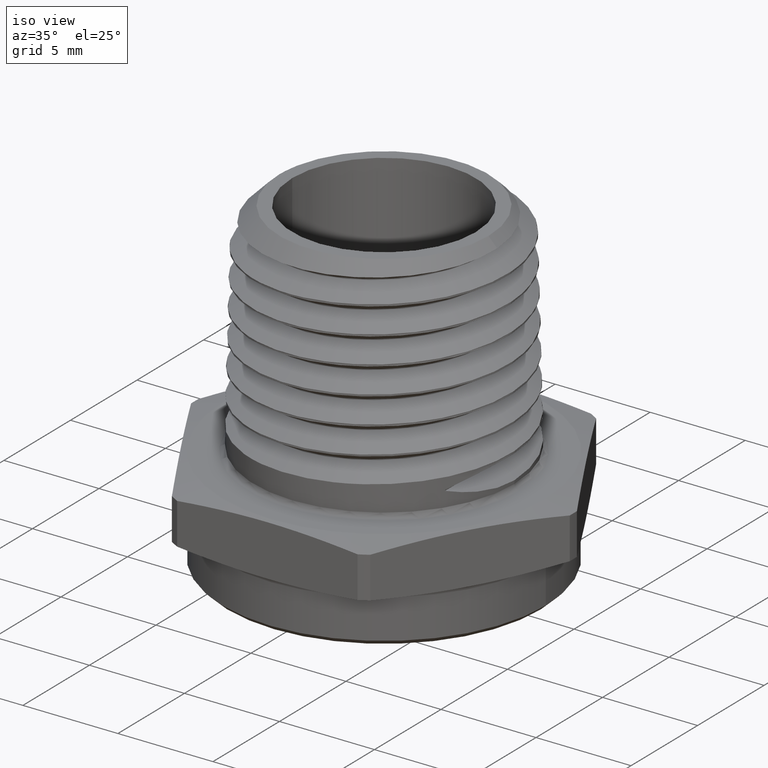
[diagram: clean part render]
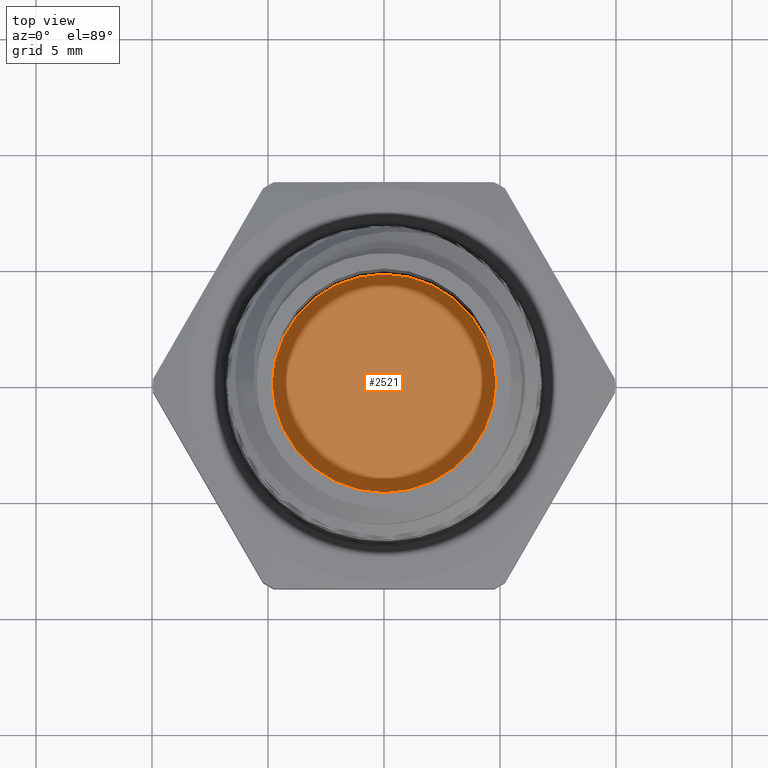
[diagram: tour spotlight — one face highlighted and labeled with its STEP entity id]
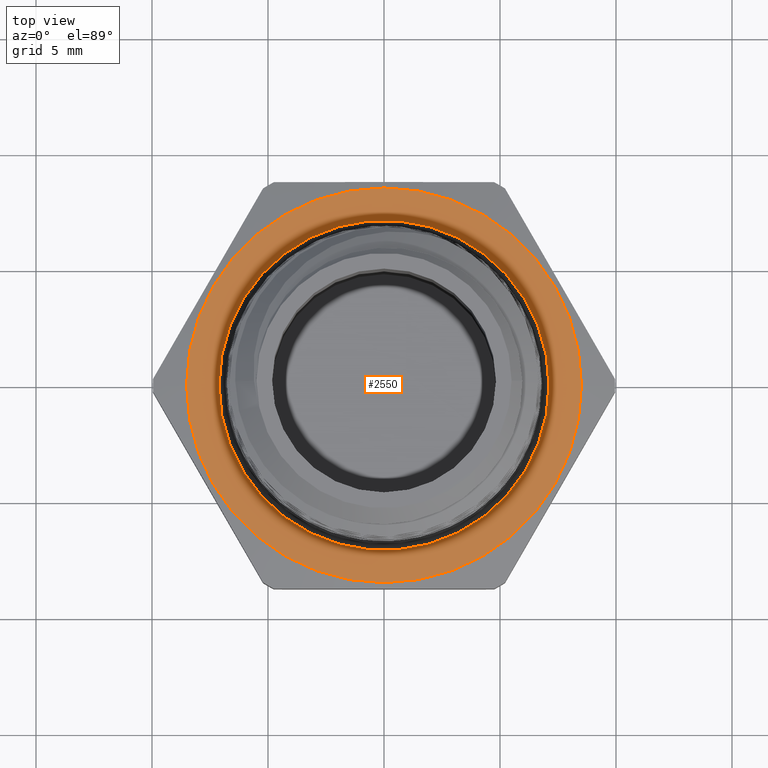
[diagram: tour spotlight — one face highlighted and labeled with its STEP entity id]
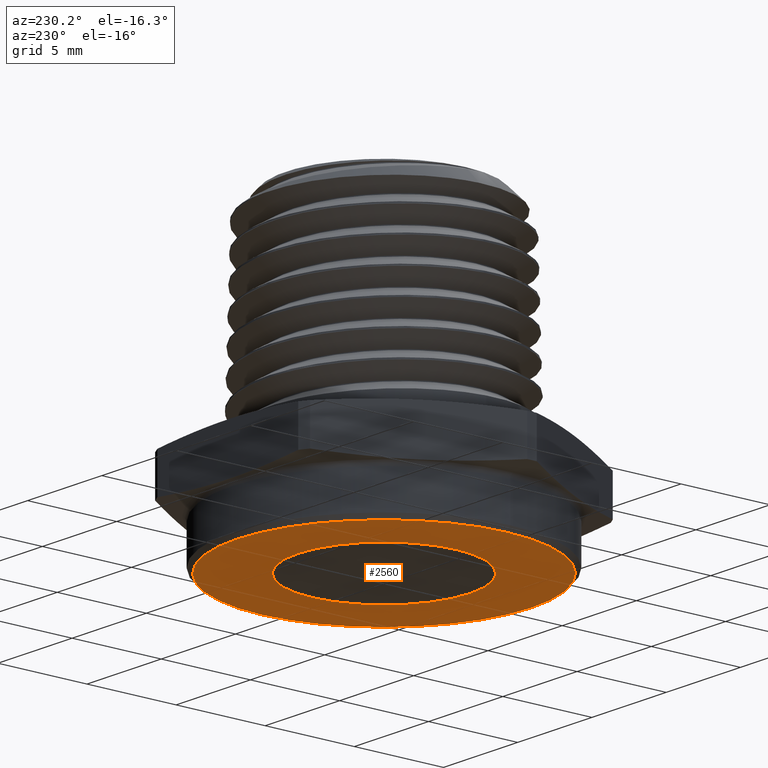
[diagram: tour spotlight — one face highlighted and labeled with its STEP entity id]
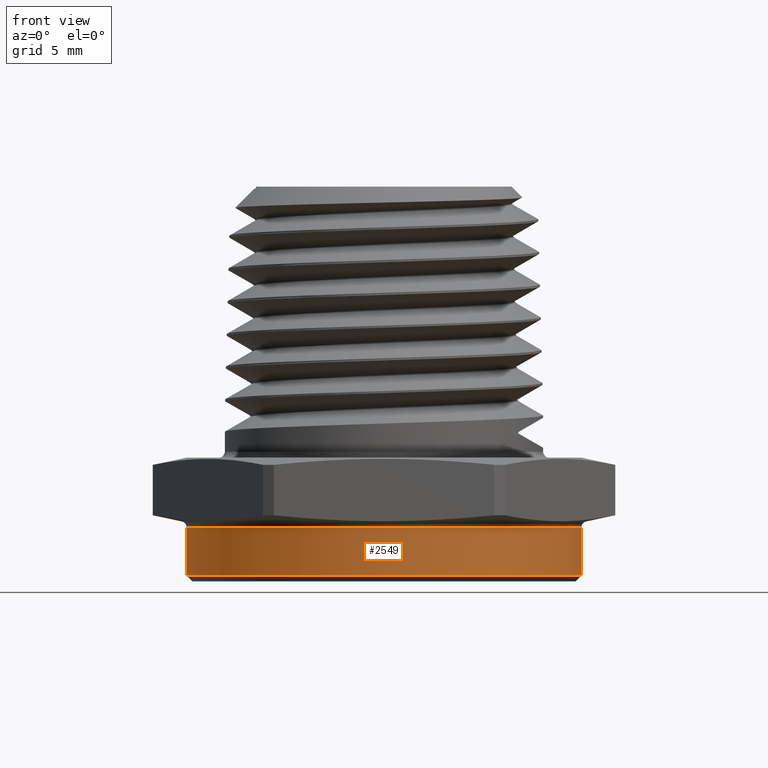
[diagram: tour spotlight — one face highlighted and labeled with its STEP entity id]
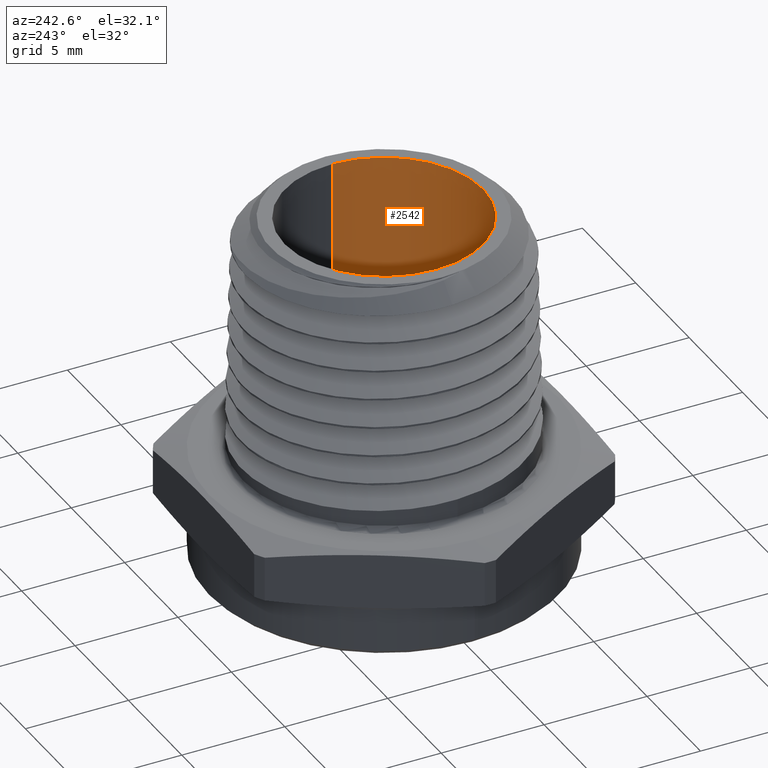
[diagram: tour spotlight — one face highlighted and labeled with its STEP entity id]
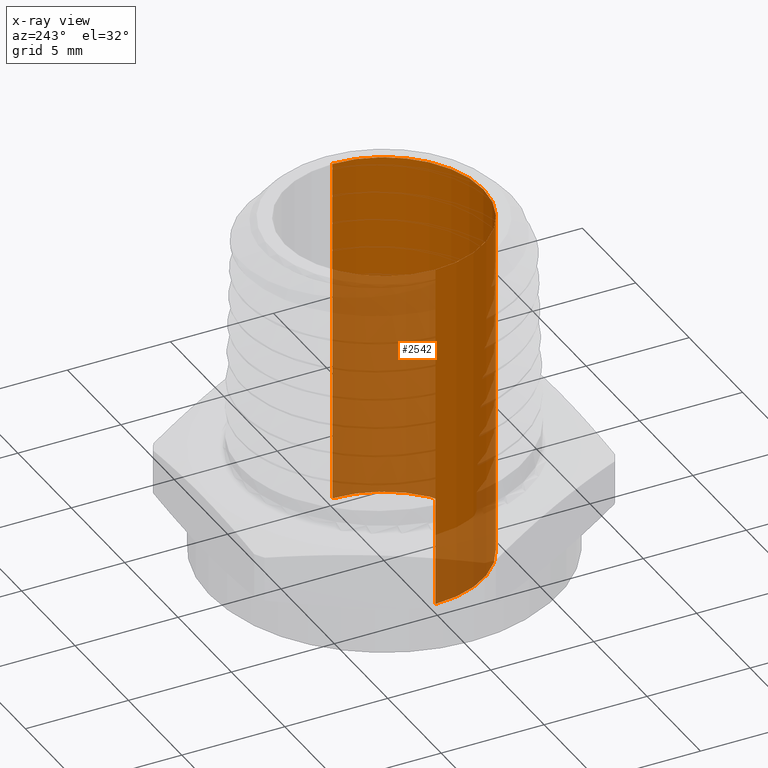
[diagram: x-ray of the same camera — body ghosted, this tour face saturated]
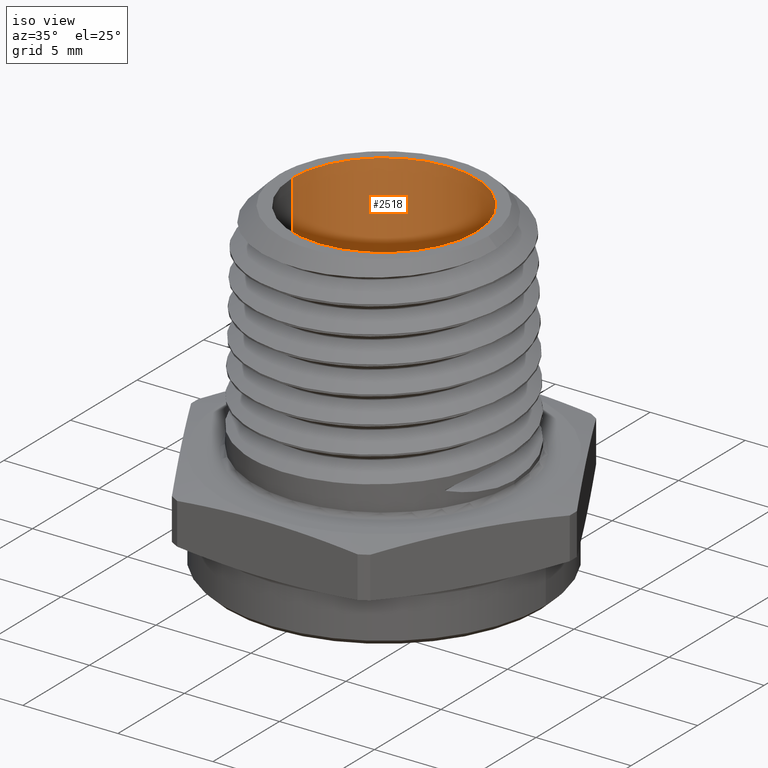
[diagram: tour spotlight — one face highlighted and labeled with its STEP entity id]
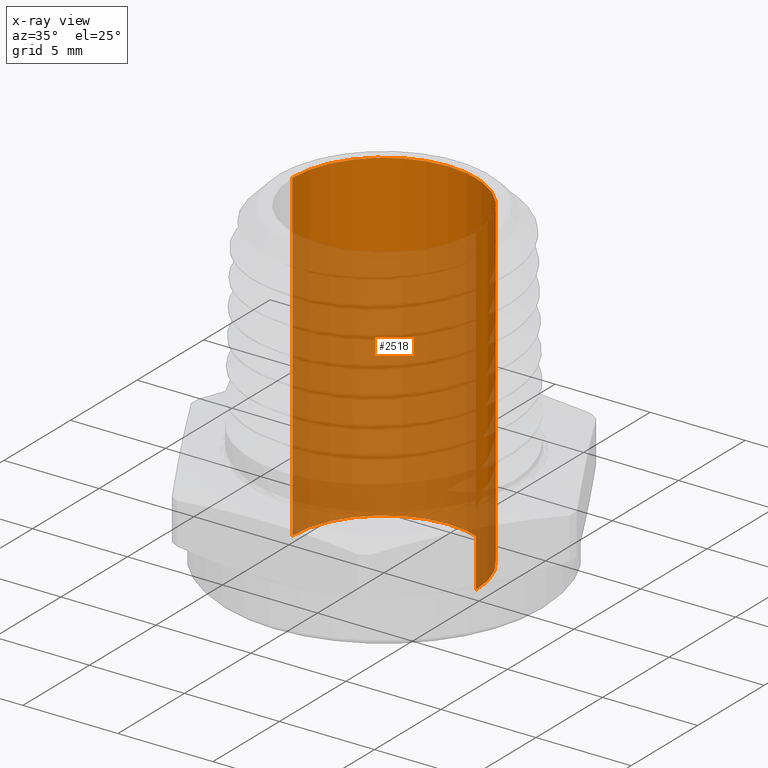
[diagram: x-ray of the same camera — body ghosted, this tour face saturated]
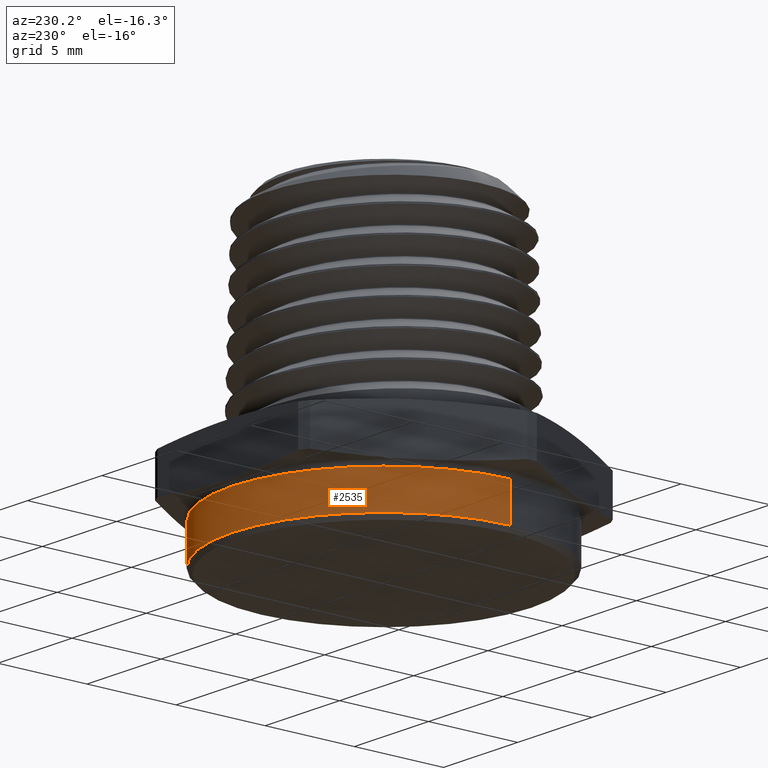
[diagram: tour spotlight — one face highlighted and labeled with its STEP entity id]
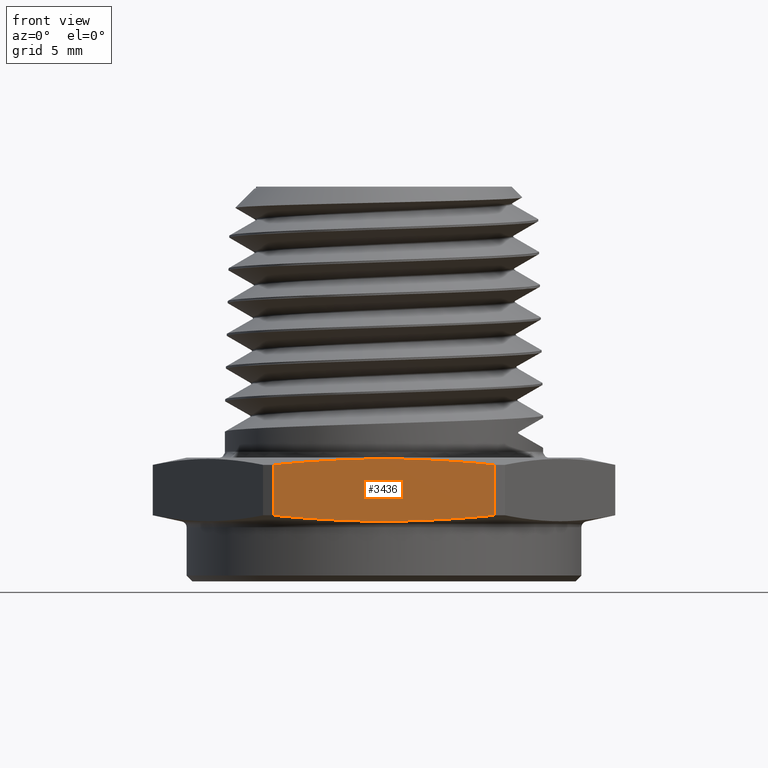
[diagram: tour spotlight — one face highlighted and labeled with its STEP entity id]
A machine part: a face-by-face anatomy tour. The part has 59 B-rep faces; the first image is the clean iso view, then the 8 largest visible faces are spotlighted one at a time (largest first), each with its STEP entity span.

Face 1 — top view, entity #2521. In plain terms, the highlighted planar face has unit normal (0, 0, -1).
Definition (entity closure, byte-faithful):
#861 = PLANE ( 'NONE',  #1283 ) ;
#870 = CARTESIAN_POINT ( 'NONE',  ( -3.414809992080328400E-017, 0.0000000000000000000, 0.02999999999999998800 ) ) ;
#871 = DIRECTION ( 'NONE',  ( 0.0000000000000000000, 0.0000000000000000000, -1.000000000000000000 ) ) ;
#872 = DIRECTION ( 'NONE',  ( -1.000000000000000000, 0.0000000000000000000, -0.0000000000000000000 ) ) ;
#1204 = EDGE_CURVE ( 'NONE', #1735, #1736, #2582, .T. ) ;
#1207 = EDGE_CURVE ( 'NONE', #1736, #1735, #2587, .T. ) ;
#1226 = AXIS2_PLACEMENT_3D ( 'NONE', #3749, #3750, #3751 ) ;
#1228 = AXIS2_PLACEMENT_3D ( 'NONE', #3756, #3757, #3758 ) ;
#1283 = AXIS2_PLACEMENT_3D ( 'NONE', #870, #871, #872 ) ;
#1354 = FACE_OUTER_BOUND ( 'NONE', #1505, .T. ) ;
#1505 = EDGE_LOOP ( 'NONE', ( #1563, #1528 ) ) ;
#1528 = ORIENTED_EDGE ( 'NONE', *, *, #1207, .F. ) ;
#1563 = ORIENTED_EDGE ( 'NONE', *, *, #1204, .F. ) ;
#1735 = VERTEX_POINT ( 'NONE', #2308 ) ;
#1736 = VERTEX_POINT ( 'NONE', #2292 ) ;
#2292 = CARTESIAN_POINT ( 'NONE',  ( 0.1899999999999999500, 2.326828918379970600E-017, 0.02999999999999998800 ) ) ;
#2308 = CARTESIAN_POINT ( 'NONE',  ( -0.1900000000000000300, 0.0000000000000000000, 0.02999999999999998800 ) ) ;
#2521 = ADVANCED_FACE ( 'NONE', ( #1354 ), #861, .F. ) ;
#2582 = CIRCLE ( 'NONE', #1226, 0.1899999999999999700 ) ;
#2587 = CIRCLE ( 'NONE', #1228, 0.1899999999999999700 ) ;
#3749 = CARTESIAN_POINT ( 'NONE',  ( -3.414809992080328400E-017, 0.0000000000000000000, 0.02999999999999998800 ) ) ;
#3750 = DIRECTION ( 'NONE',  ( 0.0000000000000000000, 0.0000000000000000000, -1.000000000000000000 ) ) ;
#3751 = DIRECTION ( 'NONE',  ( -1.000000000000000000, 0.0000000000000000000, 0.0000000000000000000 ) ) ;
#3756 = CARTESIAN_POINT ( 'NONE',  ( -3.414809992080328400E-017, 0.0000000000000000000, 0.02999999999999998800 ) ) ;
#3757 = DIRECTION ( 'NONE',  ( 0.0000000000000000000, 0.0000000000000000000, -1.000000000000000000 ) ) ;
#3758 = DIRECTION ( 'NONE',  ( -1.000000000000000000, 0.0000000000000000000, 0.0000000000000000000 ) ) ;

Face 2 — top view, entity #2550. In plain terms, the highlighted planar face has unit normal (-0, 0, 1).
Definition (entity closure, byte-faithful):
#964 = DIRECTION ( 'NONE',  ( -0.0000000000000000000, 0.0000000000000000000, 1.000000000000000000 ) ) ;
#965 = CARTESIAN_POINT ( 'NONE',  ( -0.1991858428704206800, -0.3449999999999998100, 0.1100000000000000000 ) ) ;
#967 = PLANE ( 'NONE',  #1316 ) ;
#969 = DIRECTION ( 'NONE',  ( 1.000000000000000000, 0.0000000000000000000, 0.0000000000000000000 ) ) ;
#1083 = CARTESIAN_POINT ( 'NONE',  ( 0.2800000000000000300, 0.0000000000000000000, 0.1100000000000000300 ) ) ;
#1117 = CARTESIAN_POINT ( 'NONE',  ( 0.3350000000000000200, 4.102566777143634000E-017, 0.1099999999999999300 ) ) ;
#1118 = CARTESIAN_POINT ( 'NONE',  ( -0.3350000000000000200, 0.0000000000000000000, 0.1100000000000000000 ) ) ;
#1122 = CARTESIAN_POINT ( 'NONE',  ( -0.2800000000000000300, 3.429011037612588800E-017, 0.1100000000000000300 ) ) ;
#1167 = EDGE_CURVE ( 'NONE', #5028, #5022, #2726, .T. ) ;
#1168 = EDGE_CURVE ( 'NONE', #5027, #4989, #2725, .T. ) ;
#1214 = AXIS2_PLACEMENT_3D ( 'NONE', #4363, #4364, #4365 ) ;
#1215 = AXIS2_PLACEMENT_3D ( 'NONE', #4366, #4367, #4368 ) ;
#1236 = AXIS2_PLACEMENT_3D ( 'NONE', #3790, #3791, #3792 ) ;
#1247 = AXIS2_PLACEMENT_3D ( 'NONE', #3847, #3848, #3849 ) ;
#1316 = AXIS2_PLACEMENT_3D ( 'NONE', #965, #964, #969 ) ;
#1450 = ORIENTED_EDGE ( 'NONE', *, *, #1594, .F. ) ;
#1451 = ORIENTED_EDGE ( 'NONE', *, *, #1167, .F. ) ;
#1452 = ORIENTED_EDGE ( 'NONE', *, *, #1578, .T. ) ;
#1453 = ORIENTED_EDGE ( 'NONE', *, *, #1168, .T. ) ;
#1578 = EDGE_CURVE ( 'NONE', #4989, #5027, #2602, .T. ) ;
#1594 = EDGE_CURVE ( 'NONE', #5022, #5028, #2618, .T. ) ;
#2550 = ADVANCED_FACE ( 'NONE', ( #4681, #4683 ), #967, .T. ) ;
#2602 = CIRCLE ( 'NONE', #1236, 0.2800000000000000300 ) ;
#2618 = CIRCLE ( 'NONE', #1247, 0.3350000000000000200 ) ;
#2688 = EDGE_LOOP ( 'NONE', ( #1450, #1451 ) ) ;
#2689 = EDGE_LOOP ( 'NONE', ( #1452, #1453 ) ) ;
#2725 = CIRCLE ( 'NONE', #1215, 0.2800000000000000300 ) ;
#2726 = CIRCLE ( 'NONE', #1214, 0.3350000000000000200 ) ;
#3790 = CARTESIAN_POINT ( 'NONE',  ( 0.0000000000000000000, 0.0000000000000000000, 0.1100000000000000000 ) ) ;
#3791 = DIRECTION ( 'NONE',  ( 0.0000000000000000000, -0.0000000000000000000, -1.000000000000000000 ) ) ;
#3792 = DIRECTION ( 'NONE',  ( 1.000000000000000000, 0.0000000000000000000, 0.0000000000000000000 ) ) ;
#3847 = CARTESIAN_POINT ( 'NONE',  ( 1.347111479062086200E-017, 0.0000000000000000000, 0.1099999999999999700 ) ) ;
#3848 = DIRECTION ( 'NONE',  ( -1.224646799147351200E-016, -0.0000000000000000000, -1.000000000000000000 ) ) ;
#3849 = DIRECTION ( 'NONE',  ( -1.000000000000000000, 0.0000000000000000000, 1.019346266292635500E-016 ) ) ;
#4363 = CARTESIAN_POINT ( 'NONE',  ( 1.347111479062086200E-017, 0.0000000000000000000, 0.1099999999999999700 ) ) ;
#4364 = DIRECTION ( 'NONE',  ( -1.224646799147351200E-016, -0.0000000000000000000, -1.000000000000000000 ) ) ;
#4365 = DIRECTION ( 'NONE',  ( -1.000000000000000000, 0.0000000000000000000, 1.019346266292635500E-016 ) ) ;
#4366 = CARTESIAN_POINT ( 'NONE',  ( 0.0000000000000000000, 0.0000000000000000000, 0.1100000000000000000 ) ) ;
#4367 = DIRECTION ( 'NONE',  ( 0.0000000000000000000, -0.0000000000000000000, -1.000000000000000000 ) ) ;
#4368 = DIRECTION ( 'NONE',  ( 1.000000000000000000, 0.0000000000000000000, 0.0000000000000000000 ) ) ;
#4681 = FACE_OUTER_BOUND ( 'NONE', #2688, .T. ) ;
#4683 = FACE_BOUND ( 'NONE', #2689, .T. ) ;
#4989 = VERTEX_POINT ( 'NONE', #1083 ) ;
#5022 = VERTEX_POINT ( 'NONE', #1118 ) ;
#5027 = VERTEX_POINT ( 'NONE', #1122 ) ;
#5028 = VERTEX_POINT ( 'NONE', #1117 ) ;

Face 3 — auxiliary view, entity #2560. In plain terms, the highlighted planar face has unit normal (0, 0, -1).
Definition (entity closure, byte-faithful):
#996 = DIRECTION ( 'NONE',  ( 0.0000000000000000000, 0.0000000000000000000, -1.000000000000000000 ) ) ;
#997 = CARTESIAN_POINT ( 'NONE',  ( 0.0000000000000000000, 0.0000000000000000000, -0.1000000000000000100 ) ) ;
#999 = PLANE ( 'NONE',  #1325 ) ;
#1001 = DIRECTION ( 'NONE',  ( -1.000000000000000000, 0.0000000000000000000, -0.0000000000000000000 ) ) ;
#1032 = CARTESIAN_POINT ( 'NONE',  ( -0.1900000000000000300, 0.0000000000000000000, -0.1000000000000000100 ) ) ;
#1034 = CARTESIAN_POINT ( 'NONE',  ( -0.3249999999999999600, 4.041334437186264600E-017, -0.1000000000000000100 ) ) ;
#1081 = CARTESIAN_POINT ( 'NONE',  ( 0.1899999999999999500, 2.326828918379970900E-017, -0.1000000000000000100 ) ) ;
#1099 = CARTESIAN_POINT ( 'NONE',  ( 0.3249999999999999600, 0.0000000000000000000, -0.1000000000000000100 ) ) ;
#1170 = EDGE_CURVE ( 'NONE', #5018, #4988, #2723, .T. ) ;
#1171 = EDGE_CURVE ( 'NONE', #4990, #4985, #2728, .T. ) ;
#1209 = EDGE_CURVE ( 'NONE', #4988, #5018, #2591, .T. ) ;
#1210 = EDGE_CURVE ( 'NONE', #4985, #4990, #2592, .T. ) ;
#1217 = AXIS2_PLACEMENT_3D ( 'NONE', #4372, #4373, #4374 ) ;
#1218 = AXIS2_PLACEMENT_3D ( 'NONE', #4375, #4376, #4377 ) ;
#1230 = AXIS2_PLACEMENT_3D ( 'NONE', #3763, #3764, #3765 ) ;
#1231 = AXIS2_PLACEMENT_3D ( 'NONE', #3768, #3769, #3770 ) ;
#1325 = AXIS2_PLACEMENT_3D ( 'NONE', #997, #996, #1001 ) ;
#1662 = ORIENTED_EDGE ( 'NONE', *, *, #1170, .T. ) ;
#1663 = ORIENTED_EDGE ( 'NONE', *, *, #1209, .T. ) ;
#1664 = ORIENTED_EDGE ( 'NONE', *, *, #1171, .F. ) ;
#1665 = ORIENTED_EDGE ( 'NONE', *, *, #1210, .F. ) ;
#2560 = ADVANCED_FACE ( 'NONE', ( #4698, #4702 ), #999, .T. ) ;
#2591 = CIRCLE ( 'NONE', #1230, 0.3249999999999999600 ) ;
#2592 = CIRCLE ( 'NONE', #1231, 0.1899999999999999700 ) ;
#2683 = EDGE_LOOP ( 'NONE', ( #1662, #1663 ) ) ;
#2686 = EDGE_LOOP ( 'NONE', ( #1664, #1665 ) ) ;
#2723 = CIRCLE ( 'NONE', #1217, 0.3249999999999999600 ) ;
#2728 = CIRCLE ( 'NONE', #1218, 0.1899999999999999700 ) ;
#3763 = CARTESIAN_POINT ( 'NONE',  ( 0.0000000000000000000, 0.0000000000000000000, -0.1000000000000000100 ) ) ;
#3764 = DIRECTION ( 'NONE',  ( 0.0000000000000000000, 0.0000000000000000000, -1.000000000000000000 ) ) ;
#3765 = DIRECTION ( 'NONE',  ( -1.000000000000000000, 0.0000000000000000000, 0.0000000000000000000 ) ) ;
#3768 = CARTESIAN_POINT ( 'NONE',  ( -3.414809992080328400E-017, 0.0000000000000000000, -0.1000000000000000100 ) ) ;
#3769 = DIRECTION ( 'NONE',  ( 0.0000000000000000000, 0.0000000000000000000, -1.000000000000000000 ) ) ;
#3770 = DIRECTION ( 'NONE',  ( -1.000000000000000000, 0.0000000000000000000, 0.0000000000000000000 ) ) ;
#4372 = CARTESIAN_POINT ( 'NONE',  ( 0.0000000000000000000, 0.0000000000000000000, -0.1000000000000000100 ) ) ;
#4373 = DIRECTION ( 'NONE',  ( 0.0000000000000000000, 0.0000000000000000000, -1.000000000000000000 ) ) ;
#4374 = DIRECTION ( 'NONE',  ( -1.000000000000000000, 0.0000000000000000000, 0.0000000000000000000 ) ) ;
#4375 = CARTESIAN_POINT ( 'NONE',  ( -3.414809992080328400E-017, 0.0000000000000000000, -0.1000000000000000100 ) ) ;
#4376 = DIRECTION ( 'NONE',  ( 0.0000000000000000000, 0.0000000000000000000, -1.000000000000000000 ) ) ;
#4377 = DIRECTION ( 'NONE',  ( -1.000000000000000000, 0.0000000000000000000, 0.0000000000000000000 ) ) ;
#4698 = FACE_OUTER_BOUND ( 'NONE', #2683, .T. ) ;
#4702 = FACE_BOUND ( 'NONE', #2686, .T. ) ;
#4985 = VERTEX_POINT ( 'NONE', #1081 ) ;
#4988 = VERTEX_POINT ( 'NONE', #1034 ) ;
#4990 = VERTEX_POINT ( 'NONE', #1032 ) ;
#5018 = VERTEX_POINT ( 'NONE', #1099 ) ;

Face 4 — front view, entity #2549. In plain terms, the highlighted cylindrical surface (partial cylindrical patch) has radius 8.509 mm, axis along (-0, -0, 1).
Definition (entity closure, byte-faithful):
#961 = DIRECTION ( 'NONE',  ( 1.000000000000000000, 0.0000000000000000000, 0.0000000000000000000 ) ) ;
#962 = CARTESIAN_POINT ( 'NONE',  ( 0.0000000000000000000, 0.0000000000000000000, -0.1000000000000000100 ) ) ;
#963 = DIRECTION ( 'NONE',  ( -0.0000000000000000000, -0.0000000000000000000, 1.000000000000000000 ) ) ;
#1033 = CARTESIAN_POINT ( 'NONE',  ( 0.3350000000000000200, 0.0000000000000000000, -0.008097840331950219300 ) ) ;
#1080 = CARTESIAN_POINT ( 'NONE',  ( -0.3350000000000000200, 4.102566777143633400E-017, -0.08999999999999970500 ) ) ;
#1084 = CARTESIAN_POINT ( 'NONE',  ( 0.3350000000000000200, 0.0000000000000000000, -0.08999999999999970500 ) ) ;
#1120 = CARTESIAN_POINT ( 'NONE',  ( -0.3350000000000000200, 4.102566777143633400E-017, -0.008097840331950177700 ) ) ;
#1169 = EDGE_CURVE ( 'NONE', #4983, #4991, #2727, .T. ) ;
#1216 = AXIS2_PLACEMENT_3D ( 'NONE', #4369, #4370, #4371 ) ;
#1238 = AXIS2_PLACEMENT_3D ( 'NONE', #3796, #3797, #3798 ) ;
#1315 = AXIS2_PLACEMENT_3D ( 'NONE', #962, #963, #961 ) ;
#1382 = ORIENTED_EDGE ( 'NONE', *, *, #1608, .F. ) ;
#1383 = ORIENTED_EDGE ( 'NONE', *, *, #1169, .T. ) ;
#1384 = ORIENTED_EDGE ( 'NONE', *, *, #1610, .T. ) ;
#1580 = EDGE_CURVE ( 'NONE', #4986, #5025, #2605, .T. ) ;
#1608 = EDGE_CURVE ( 'NONE', #4983, #5025, #2449, .T. ) ;
#1610 = EDGE_CURVE ( 'NONE', #4991, #4986, #2451, .T. ) ;
#1661 = ORIENTED_EDGE ( 'NONE', *, *, #1580, .T. ) ;
#2449 = LINE ( 'NONE', #3894, #2450 ) ;
#2450 = VECTOR ( 'NONE', #3895, 39.37007874015748100 ) ;
#2451 = LINE ( 'NONE', #3889, #2454 ) ;
#2454 = VECTOR ( 'NONE', #3890, 39.37007874015748100 ) ;
#2549 = ADVANCED_FACE ( 'NONE', ( #4679 ), #4674, .T. ) ;
#2605 = CIRCLE ( 'NONE', #1238, 0.3350000000000000200 ) ;
#2684 = EDGE_LOOP ( 'NONE', ( #1382, #1383, #1384, #1661 ) ) ;
#2727 = CIRCLE ( 'NONE', #1216, 0.3350000000000000200 ) ;
#3796 = CARTESIAN_POINT ( 'NONE',  ( 0.0000000000000000000, 0.0000000000000000000, -0.008097840331950198500 ) ) ;
#3797 = DIRECTION ( 'NONE',  ( -6.123233995736756200E-017, -0.0000000000000000000, -1.000000000000000000 ) ) ;
#3798 = DIRECTION ( 'NONE',  ( -1.000000000000000000, 0.0000000000000000000, 6.052368456112523200E-017 ) ) ;
#3889 = CARTESIAN_POINT ( 'NONE',  ( 0.3350000000000000200, 0.0000000000000000000, -0.1000000000000000100 ) ) ;
#3890 = DIRECTION ( 'NONE',  ( -0.0000000000000000000, -0.0000000000000000000, 1.000000000000000000 ) ) ;
#3894 = CARTESIAN_POINT ( 'NONE',  ( -0.3350000000000000200, 4.102566777143633400E-017, -0.1000000000000000100 ) ) ;
#3895 = DIRECTION ( 'NONE',  ( -0.0000000000000000000, -0.0000000000000000000, 1.000000000000000000 ) ) ;
#4369 = CARTESIAN_POINT ( 'NONE',  ( 0.0000000000000000000, 0.0000000000000000000, -0.08999999999999970500 ) ) ;
#4370 = DIRECTION ( 'NONE',  ( 0.0000000000000000000, 0.0000000000000000000, 1.000000000000000000 ) ) ;
#4371 = DIRECTION ( 'NONE',  ( -1.000000000000000000, 0.0000000000000000000, 0.0000000000000000000 ) ) ;
#4674 = CYLINDRICAL_SURFACE ( 'NONE', #1315, 0.3350000000000000200 ) ;
#4679 = FACE_OUTER_BOUND ( 'NONE', #2684, .T. ) ;
#4983 = VERTEX_POINT ( 'NONE', #1080 ) ;
#4986 = VERTEX_POINT ( 'NONE', #1033 ) ;
#4991 = VERTEX_POINT ( 'NONE', #1084 ) ;
#5025 = VERTEX_POINT ( 'NONE', #1120 ) ;

Face 5 — auxiliary view, entity #2542. An x-ray twin of the same camera follows (body ghosted, this face saturated) — the face is partly hidden behind the body. In plain terms, the highlighted cylindrical surface (partial cylindrical patch) has radius 4.826 mm, axis along (0, 0, -1).
Definition (entity closure, byte-faithful):
#940 = DIRECTION ( 'NONE',  ( -1.000000000000000000, 0.0000000000000000000, 0.0000000000000000000 ) ) ;
#941 = CARTESIAN_POINT ( 'NONE',  ( -3.414809992080328400E-017, 0.0000000000000000000, 1.149827560572968400 ) ) ;
#942 = DIRECTION ( 'NONE',  ( 0.0000000000000000000, 0.0000000000000000000, -1.000000000000000000 ) ) ;
#1032 = CARTESIAN_POINT ( 'NONE',  ( -0.1900000000000000300, 0.0000000000000000000, -0.1000000000000000100 ) ) ;
#1081 = CARTESIAN_POINT ( 'NONE',  ( 0.1899999999999999500, 2.326828918379970900E-017, -0.1000000000000000100 ) ) ;
#1082 = CARTESIAN_POINT ( 'NONE',  ( 0.1899999999999999500, 2.326828918379970900E-017, 0.5699999999999999500 ) ) ;
#1116 = CARTESIAN_POINT ( 'NONE',  ( -0.1900000000000000300, 0.0000000000000000000, 0.5699999999999999500 ) ) ;
#1210 = EDGE_CURVE ( 'NONE', #4985, #4990, #2592, .T. ) ;
#1211 = EDGE_CURVE ( 'NONE', #4987, #4985, #2588, .T. ) ;
#1212 = EDGE_CURVE ( 'NONE', #5016, #4990, #2594, .T. ) ;
#1213 = EDGE_CURVE ( 'NONE', #4987, #5016, #2596, .T. ) ;
#1231 = AXIS2_PLACEMENT_3D ( 'NONE', #3768, #3769, #3770 ) ;
#1232 = AXIS2_PLACEMENT_3D ( 'NONE', #3775, #3776, #3777 ) ;
#1309 = AXIS2_PLACEMENT_3D ( 'NONE', #941, #942, #940 ) ;
#1479 = ORIENTED_EDGE ( 'NONE', *, *, #1211, .T. ) ;
#1480 = ORIENTED_EDGE ( 'NONE', *, *, #1213, .F. ) ;
#1481 = ORIENTED_EDGE ( 'NONE', *, *, #1210, .T. ) ;
#1482 = ORIENTED_EDGE ( 'NONE', *, *, #1212, .F. ) ;
#2542 = ADVANCED_FACE ( 'NONE', ( #4665 ), #4645, .F. ) ;
#2588 = LINE ( 'NONE', #3767, #2595 ) ;
#2592 = CIRCLE ( 'NONE', #1231, 0.1899999999999999700 ) ;
#2594 = LINE ( 'NONE', #3771, #2597 ) ;
#2595 = VECTOR ( 'NONE', #3762, 39.37007874015748100 ) ;
#2596 = CIRCLE ( 'NONE', #1232, 0.1899999999999999700 ) ;
#2597 = VECTOR ( 'NONE', #3772, 39.37007874015748100 ) ;
#2710 = EDGE_LOOP ( 'NONE', ( #1480, #1479, #1481, #1482 ) ) ;
#3762 = DIRECTION ( 'NONE',  ( 0.0000000000000000000, 0.0000000000000000000, -1.000000000000000000 ) ) ;
#3767 = CARTESIAN_POINT ( 'NONE',  ( 0.1899999999999999500, 2.326828918379970900E-017, 1.149827560572968400 ) ) ;
#3768 = CARTESIAN_POINT ( 'NONE',  ( -3.414809992080328400E-017, 0.0000000000000000000, -0.1000000000000000100 ) ) ;
#3769 = DIRECTION ( 'NONE',  ( 0.0000000000000000000, 0.0000000000000000000, -1.000000000000000000 ) ) ;
#3770 = DIRECTION ( 'NONE',  ( -1.000000000000000000, 0.0000000000000000000, 0.0000000000000000000 ) ) ;
#3771 = CARTESIAN_POINT ( 'NONE',  ( -0.1900000000000000300, 0.0000000000000000000, 1.149827560572968400 ) ) ;
#3772 = DIRECTION ( 'NONE',  ( 0.0000000000000000000, 0.0000000000000000000, -1.000000000000000000 ) ) ;
#3775 = CARTESIAN_POINT ( 'NONE',  ( -3.414809992080328400E-017, 0.0000000000000000000, 0.5699999999999999500 ) ) ;
#3776 = DIRECTION ( 'NONE',  ( -0.0000000000000000000, -0.0000000000000000000, -1.000000000000000000 ) ) ;
#3777 = DIRECTION ( 'NONE',  ( 1.000000000000000000, 0.0000000000000000000, 0.0000000000000000000 ) ) ;
#4645 = CYLINDRICAL_SURFACE ( 'NONE', #1309, 0.1899999999999999700 ) ;
#4665 = FACE_OUTER_BOUND ( 'NONE', #2710, .T. ) ;
#4985 = VERTEX_POINT ( 'NONE', #1081 ) ;
#4987 = VERTEX_POINT ( 'NONE', #1082 ) ;
#4990 = VERTEX_POINT ( 'NONE', #1032 ) ;
#5016 = VERTEX_POINT ( 'NONE', #1116 ) ;

Face 6 — iso view, entity #2518. An x-ray twin of the same camera follows (body ghosted, this face saturated) — the face is partly hidden behind the body. In plain terms, the highlighted cylindrical surface (partial cylindrical patch) has radius 4.826 mm, axis along (0, 0, -1).
Definition (entity closure, byte-faithful):
#832 = DIRECTION ( 'NONE',  ( 0.0000000000000000000, 0.0000000000000000000, -1.000000000000000000 ) ) ;
#833 = DIRECTION ( 'NONE',  ( -1.000000000000000000, 0.0000000000000000000, 0.0000000000000000000 ) ) ;
#836 = CARTESIAN_POINT ( 'NONE',  ( -3.414809992080328400E-017, 0.0000000000000000000, 1.149827560572968400 ) ) ;
#1032 = CARTESIAN_POINT ( 'NONE',  ( -0.1900000000000000300, 0.0000000000000000000, -0.1000000000000000100 ) ) ;
#1081 = CARTESIAN_POINT ( 'NONE',  ( 0.1899999999999999500, 2.326828918379970900E-017, -0.1000000000000000100 ) ) ;
#1082 = CARTESIAN_POINT ( 'NONE',  ( 0.1899999999999999500, 2.326828918379970900E-017, 0.5699999999999999500 ) ) ;
#1116 = CARTESIAN_POINT ( 'NONE',  ( -0.1900000000000000300, 0.0000000000000000000, 0.5699999999999999500 ) ) ;
#1171 = EDGE_CURVE ( 'NONE', #4990, #4985, #2728, .T. ) ;
#1195 = EDGE_CURVE ( 'NONE', #5016, #4987, #2573, .T. ) ;
#1211 = EDGE_CURVE ( 'NONE', #4987, #4985, #2588, .T. ) ;
#1212 = EDGE_CURVE ( 'NONE', #5016, #4990, #2594, .T. ) ;
#1218 = AXIS2_PLACEMENT_3D ( 'NONE', #4375, #4376, #4377 ) ;
#1225 = AXIS2_PLACEMENT_3D ( 'NONE', #4456, #4457, #4458 ) ;
#1269 = AXIS2_PLACEMENT_3D ( 'NONE', #836, #832, #833 ) ;
#1507 = EDGE_LOOP ( 'NONE', ( #1550, #1551, #1552, #1553 ) ) ;
#1550 = ORIENTED_EDGE ( 'NONE', *, *, #1211, .F. ) ;
#1551 = ORIENTED_EDGE ( 'NONE', *, *, #1195, .F. ) ;
#1552 = ORIENTED_EDGE ( 'NONE', *, *, #1212, .T. ) ;
#1553 = ORIENTED_EDGE ( 'NONE', *, *, #1171, .T. ) ;
#2503 = FACE_OUTER_BOUND ( 'NONE', #1507, .T. ) ;
#2506 = CYLINDRICAL_SURFACE ( 'NONE', #1269, 0.1899999999999999700 ) ;
#2518 = ADVANCED_FACE ( 'NONE', ( #2503 ), #2506, .F. ) ;
#2573 = CIRCLE ( 'NONE', #1225, 0.1899999999999999700 ) ;
#2588 = LINE ( 'NONE', #3767, #2595 ) ;
#2594 = LINE ( 'NONE', #3771, #2597 ) ;
#2595 = VECTOR ( 'NONE', #3762, 39.37007874015748100 ) ;
#2597 = VECTOR ( 'NONE', #3772, 39.37007874015748100 ) ;
#2728 = CIRCLE ( 'NONE', #1218, 0.1899999999999999700 ) ;
#3762 = DIRECTION ( 'NONE',  ( 0.0000000000000000000, 0.0000000000000000000, -1.000000000000000000 ) ) ;
#3767 = CARTESIAN_POINT ( 'NONE',  ( 0.1899999999999999500, 2.326828918379970900E-017, 1.149827560572968400 ) ) ;
#3771 = CARTESIAN_POINT ( 'NONE',  ( -0.1900000000000000300, 0.0000000000000000000, 1.149827560572968400 ) ) ;
#3772 = DIRECTION ( 'NONE',  ( 0.0000000000000000000, 0.0000000000000000000, -1.000000000000000000 ) ) ;
#4375 = CARTESIAN_POINT ( 'NONE',  ( -3.414809992080328400E-017, 0.0000000000000000000, -0.1000000000000000100 ) ) ;
#4376 = DIRECTION ( 'NONE',  ( 0.0000000000000000000, 0.0000000000000000000, -1.000000000000000000 ) ) ;
#4377 = DIRECTION ( 'NONE',  ( -1.000000000000000000, 0.0000000000000000000, 0.0000000000000000000 ) ) ;
#4456 = CARTESIAN_POINT ( 'NONE',  ( -3.414809992080328400E-017, 0.0000000000000000000, 0.5699999999999999500 ) ) ;
#4457 = DIRECTION ( 'NONE',  ( -0.0000000000000000000, -0.0000000000000000000, -1.000000000000000000 ) ) ;
#4458 = DIRECTION ( 'NONE',  ( 1.000000000000000000, 0.0000000000000000000, 0.0000000000000000000 ) ) ;
#4985 = VERTEX_POINT ( 'NONE', #1081 ) ;
#4987 = VERTEX_POINT ( 'NONE', #1082 ) ;
#4990 = VERTEX_POINT ( 'NONE', #1032 ) ;
#5016 = VERTEX_POINT ( 'NONE', #1116 ) ;

Face 7 — auxiliary view, entity #2535. In plain terms, the highlighted cylindrical surface (partial cylindrical patch) has radius 8.509 mm, axis along (-0, -0, 1).
Definition (entity closure, byte-faithful):
#919 = DIRECTION ( 'NONE',  ( 1.000000000000000000, 0.0000000000000000000, 0.0000000000000000000 ) ) ;
#920 = CARTESIAN_POINT ( 'NONE',  ( 0.0000000000000000000, 0.0000000000000000000, -0.1000000000000000100 ) ) ;
#921 = DIRECTION ( 'NONE',  ( -0.0000000000000000000, -0.0000000000000000000, 1.000000000000000000 ) ) ;
#1033 = CARTESIAN_POINT ( 'NONE',  ( 0.3350000000000000200, 0.0000000000000000000, -0.008097840331950219300 ) ) ;
#1080 = CARTESIAN_POINT ( 'NONE',  ( -0.3350000000000000200, 4.102566777143633400E-017, -0.08999999999999970500 ) ) ;
#1084 = CARTESIAN_POINT ( 'NONE',  ( 0.3350000000000000200, 0.0000000000000000000, -0.08999999999999970500 ) ) ;
#1120 = CARTESIAN_POINT ( 'NONE',  ( -0.3350000000000000200, 4.102566777143633400E-017, -0.008097840331950177700 ) ) ;
#1233 = AXIS2_PLACEMENT_3D ( 'NONE', #3781, #3782, #3783 ) ;
#1254 = AXIS2_PLACEMENT_3D ( 'NONE', #3897, #3898, #3899 ) ;
#1302 = AXIS2_PLACEMENT_3D ( 'NONE', #920, #921, #919 ) ;
#1468 = ORIENTED_EDGE ( 'NONE', *, *, #1574, .T. ) ;
#1469 = ORIENTED_EDGE ( 'NONE', *, *, #1608, .T. ) ;
#1470 = ORIENTED_EDGE ( 'NONE', *, *, #1609, .T. ) ;
#1471 = ORIENTED_EDGE ( 'NONE', *, *, #1610, .F. ) ;
#1574 = EDGE_CURVE ( 'NONE', #4991, #4983, #2599, .T. ) ;
#1608 = EDGE_CURVE ( 'NONE', #4983, #5025, #2449, .T. ) ;
#1609 = EDGE_CURVE ( 'NONE', #5025, #4986, #2452, .T. ) ;
#1610 = EDGE_CURVE ( 'NONE', #4991, #4986, #2451, .T. ) ;
#2449 = LINE ( 'NONE', #3894, #2450 ) ;
#2450 = VECTOR ( 'NONE', #3895, 39.37007874015748100 ) ;
#2451 = LINE ( 'NONE', #3889, #2454 ) ;
#2452 = CIRCLE ( 'NONE', #1254, 0.3350000000000000200 ) ;
#2454 = VECTOR ( 'NONE', #3890, 39.37007874015748100 ) ;
#2535 = ADVANCED_FACE ( 'NONE', ( #4651 ), #4650, .T. ) ;
#2599 = CIRCLE ( 'NONE', #1233, 0.3350000000000000200 ) ;
#2706 = EDGE_LOOP ( 'NONE', ( #1468, #1469, #1470, #1471 ) ) ;
#3781 = CARTESIAN_POINT ( 'NONE',  ( 0.0000000000000000000, 0.0000000000000000000, -0.08999999999999970500 ) ) ;
#3782 = DIRECTION ( 'NONE',  ( 0.0000000000000000000, 0.0000000000000000000, 1.000000000000000000 ) ) ;
#3783 = DIRECTION ( 'NONE',  ( -1.000000000000000000, 0.0000000000000000000, 0.0000000000000000000 ) ) ;
#3889 = CARTESIAN_POINT ( 'NONE',  ( 0.3350000000000000200, 0.0000000000000000000, -0.1000000000000000100 ) ) ;
#3890 = DIRECTION ( 'NONE',  ( -0.0000000000000000000, -0.0000000000000000000, 1.000000000000000000 ) ) ;
#3894 = CARTESIAN_POINT ( 'NONE',  ( -0.3350000000000000200, 4.102566777143633400E-017, -0.1000000000000000100 ) ) ;
#3895 = DIRECTION ( 'NONE',  ( -0.0000000000000000000, -0.0000000000000000000, 1.000000000000000000 ) ) ;
#3897 = CARTESIAN_POINT ( 'NONE',  ( 0.0000000000000000000, 0.0000000000000000000, -0.008097840331950198500 ) ) ;
#3898 = DIRECTION ( 'NONE',  ( -6.123233995736756200E-017, -0.0000000000000000000, -1.000000000000000000 ) ) ;
#3899 = DIRECTION ( 'NONE',  ( -1.000000000000000000, 0.0000000000000000000, 6.052368456112523200E-017 ) ) ;
#4650 = CYLINDRICAL_SURFACE ( 'NONE', #1302, 0.3350000000000000200 ) ;
#4651 = FACE_OUTER_BOUND ( 'NONE', #2706, .T. ) ;
#4983 = VERTEX_POINT ( 'NONE', #1080 ) ;
#4986 = VERTEX_POINT ( 'NONE', #1033 ) ;
#4991 = VERTEX_POINT ( 'NONE', #1084 ) ;
#5025 = VERTEX_POINT ( 'NONE', #1120 ) ;

Face 8 — front view, entity #3436. In plain terms, the highlighted planar face has unit normal (0, 1, 0).
Definition (entity closure, byte-faithful):
#1016 = PLANE ( 'NONE',  #1330 ) ;
#1017 = CARTESIAN_POINT ( 'NONE',  ( -0.1991858428704207900, -0.3449999999999998100, 0.1100000000000000000 ) ) ;
#1022 = DIRECTION ( 'NONE',  ( 0.0000000000000000000, 1.000000000000000000, 0.0000000000000000000 ) ) ;
#1023 = DIRECTION ( 'NONE',  ( 0.0000000000000000000, -0.0000000000000000000, 1.000000000000000000 ) ) ;
#1173 = EDGE_CURVE ( 'NONE', #1725, #1723, #2730, .T. ) ;
#1180 = EDGE_CURVE ( 'NONE', #1728, #1733, #2740, .T. ) ;
#1190 = EDGE_CURVE ( 'NONE', #1733, #1725, #2647, .T. ) ;
#1193 = EDGE_CURVE ( 'NONE', #1723, #1728, #2650, .T. ) ;
#1330 = AXIS2_PLACEMENT_3D ( 'NONE', #1017, #1022, #1023 ) ;
#1396 = ORIENTED_EDGE ( 'NONE', *, *, #1193, .T. ) ;
#1397 = ORIENTED_EDGE ( 'NONE', *, *, #1180, .T. ) ;
#1398 = ORIENTED_EDGE ( 'NONE', *, *, #1190, .T. ) ;
#1399 = ORIENTED_EDGE ( 'NONE', *, *, #1173, .T. ) ;
#1518 = EDGE_LOOP ( 'NONE', ( #1396, #1397, #1398, #1399 ) ) ;
#1723 = VERTEX_POINT ( 'NONE', #2296 ) ;
#1725 = VERTEX_POINT ( 'NONE', #2298 ) ;
#1728 = VERTEX_POINT ( 'NONE', #2301 ) ;
#1733 = VERTEX_POINT ( 'NONE', #2306 ) ;
#2296 = CARTESIAN_POINT ( 'NONE',  ( -0.1868971368724250700, -0.3449999999999998100, 0.01219472825828593400 ) ) ;
#2298 = CARTESIAN_POINT ( 'NONE',  ( -0.1868971368724250700, -0.3449999999999998100, 0.09780527174171402300 ) ) ;
#2301 = CARTESIAN_POINT ( 'NONE',  ( 0.1868971368724250700, -0.3449999999999998100, 0.01219472825828586200 ) ) ;
#2306 = CARTESIAN_POINT ( 'NONE',  ( 0.1868971368724250700, -0.3449999999999998100, 0.09780527174171399500 ) ) ;
#2647 = B_SPLINE_CURVE_WITH_KNOTS ( 'NONE', 3,
 ( #4425, #4419, #4421, #4427, #4428, #4429, #4430, #4431 ),
 .UNSPECIFIED., .F., .F.,
 ( 4, 2, 2, 4 ),
 ( 0.01944090170886726400, 0.02420207298205594200, 0.02658265861865027900, 0.02896324425524461600 ),
 .UNSPECIFIED. ) ;
#2650 = B_SPLINE_CURVE_WITH_KNOTS ( 'NONE', 3,
 ( #4443, #4437, #4439, #4445, #4446, #4447, #4448, #4449 ),
 .UNSPECIFIED., .F., .F.,
 ( 4, 2, 2, 4 ),
 ( 0.008707379266003482600, 0.01109029592398133200, 0.01347321258195918400, 0.01823904589791488400 ),
 .UNSPECIFIED. ) ;
#2730 = LINE ( 'NONE', #4378, #2733 ) ;
#2733 = VECTOR ( 'NONE', #4362, 39.37007874015748100 ) ;
#2740 = LINE ( 'NONE', #4395, #2744 ) ;
#2744 = VECTOR ( 'NONE', #4394, 39.37007874015748100 ) ;
#3436 = ADVANCED_FACE ( 'NONE', ( #4707 ), #1016, .F. ) ;
#4362 = DIRECTION ( 'NONE',  ( -1.224646799147351200E-016, -0.0000000000000000000, -1.000000000000000000 ) ) ;
#4378 = CARTESIAN_POINT ( 'NONE',  ( -0.1868971368724250700, -0.3449999999999998100, 2.288829804406197600E-017 ) ) ;
#4394 = DIRECTION ( 'NONE',  ( 1.224646799147351200E-016, 0.0000000000000000000, 1.000000000000000000 ) ) ;
#4395 = CARTESIAN_POINT ( 'NONE',  ( 0.1868971368724250700, -0.3449999999999998100, -2.288829804406197600E-017 ) ) ;
#4419 = CARTESIAN_POINT ( 'NONE',  ( 0.1247306861591275200, -0.3449999999999998600, 0.1040993998344882400 ) ) ;
#4421 = CARTESIAN_POINT ( 'NONE',  ( 0.06250744931464363700, -0.3449999999999997500, 0.1078667552873613700 ) ) ;
#4425 = CARTESIAN_POINT ( 'NONE',  ( 0.1868971368724250700, -0.3449999999999998100, 0.09780527174171399500 ) ) ;
#4427 = CARTESIAN_POINT ( 'NONE',  ( -0.03095414757252233600, -0.3449999999999998600, 0.1078782555001667500 ) ) ;
#4428 = CARTESIAN_POINT ( 'NONE',  ( -0.06212850595196955900, -0.3449999999999998100, 0.1069702373673606700 ) ) ;
#4429 = CARTESIAN_POINT ( 'NONE',  ( -0.1245142246070181000, -0.3449999999999998600, 0.1035077536880368700 ) ) ;
#4430 = CARTESIAN_POINT ( 'NONE',  ( -0.1557582215120212600, -0.3449999999999998100, 0.1009579741993840700 ) ) ;
#4431 = CARTESIAN_POINT ( 'NONE',  ( -0.1868971368724250700, -0.3449999999999998100, 0.09780527174171402300 ) ) ;
#4437 = CARTESIAN_POINT ( 'NONE',  ( -0.1557582215120213700, -0.3449999999999998100, 0.009042025800615860500 ) ) ;
#4439 = CARTESIAN_POINT ( 'NONE',  ( -0.1245142246070182200, -0.3449999999999998600, 0.006492246311963062300 ) ) ;
#4443 = CARTESIAN_POINT ( 'NONE',  ( -0.1868971368724250700, -0.3449999999999998100, 0.01219472825828593400 ) ) ;
#4445 = CARTESIAN_POINT ( 'NONE',  ( -0.06212850595196967700, -0.3449999999999998100, 0.003029762632639263100 ) ) ;
#4446 = CARTESIAN_POINT ( 'NONE',  ( -0.03095414757252229500, -0.3449999999999998100, 0.002121744499833164100 ) ) ;
#4447 = CARTESIAN_POINT ( 'NONE',  ( 0.06250744931464369300, -0.3449999999999998600, 0.002133244712638485800 ) ) ;
#4448 = CARTESIAN_POINT ( 'NONE',  ( 0.1247306861591275900, -0.3449999999999998100, 0.005900600165511630200 ) ) ;
#4449 = CARTESIAN_POINT ( 'NONE',  ( 0.1868971368724250700, -0.3449999999999998100, 0.01219472825828586200 ) ) ;
#4707 = FACE_OUTER_BOUND ( 'NONE', #1518, .T. ) ;